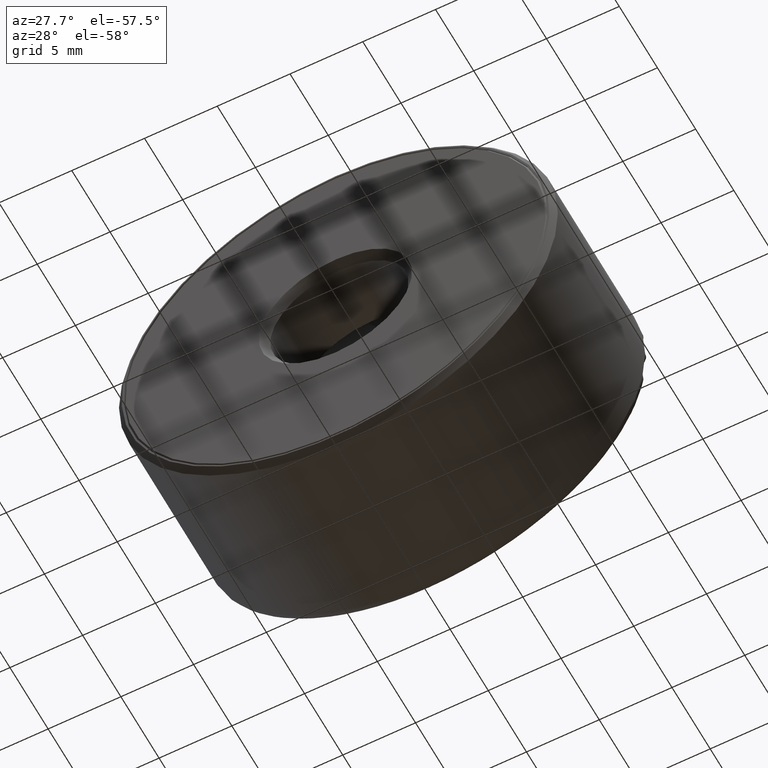
[diagram: clean part render]
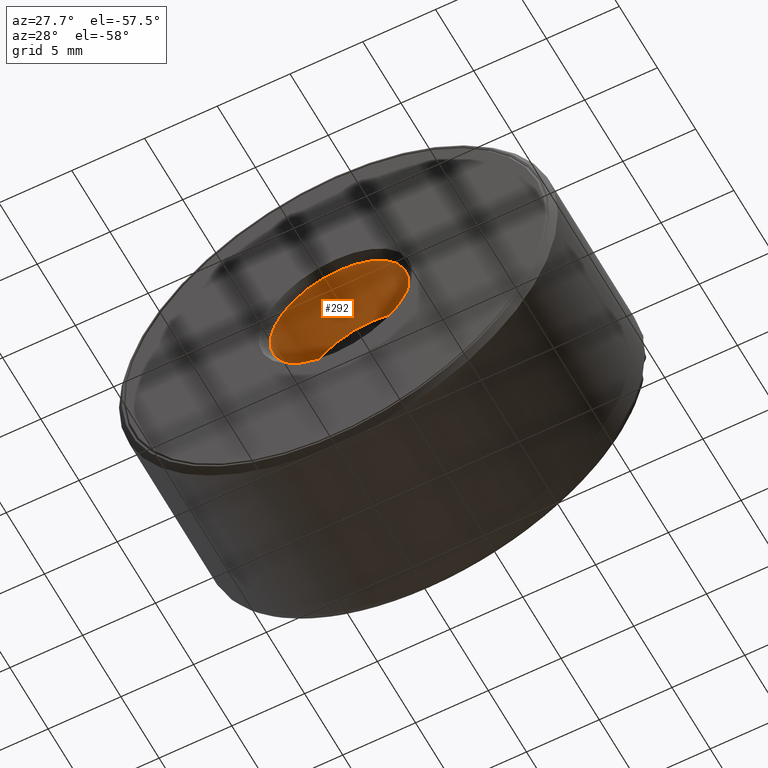
[diagram: same view with one face highlighted and labeled with its STEP entity id]
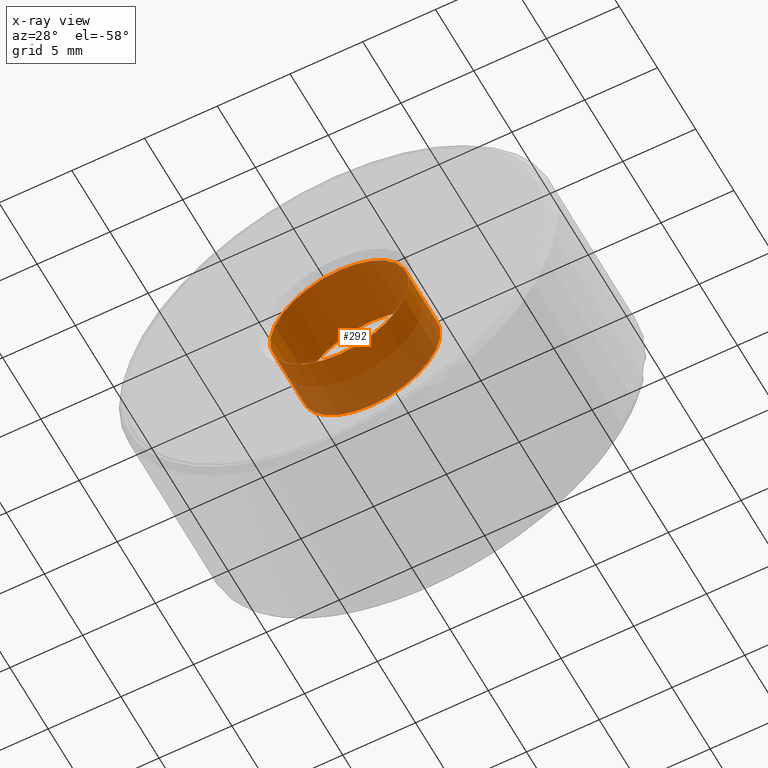
[diagram: x-ray of the same camera — body ghosted, the highlighted face saturated]
A machine part, auxiliary view. The second image highlights one B-rep face of the part: STEP entity #292.
The next image is the same camera in x-ray: the body ghosted, the highlighted face saturated — about 30% of this face is hidden behind the body in this view.
In plain terms, the highlighted cylindrical surface (bore or boss wall) has radius 4.7625 mm, axis along (-0, 1, -0).
Its self-contained STEP definition (entity closure, byte-faithful):
#9 = AXIS2_PLACEMENT_3D ( 'NONE', #597, #99, #372 ) ;
#90 = ORIENTED_EDGE ( 'NONE', *, *, #370, .T. ) ;
#99 = DIRECTION ( 'NONE',  ( -0.0000000000000000000, 1.000000000000000000, -0.0000000000000000000 ) ) ;
#119 = VERTEX_POINT ( 'NONE', #564 ) ;
#152 = CARTESIAN_POINT ( 'NONE',  ( 0.0000000000000000000, 0.1843750000000000700, 0.1875000000000000800 ) ) ;
#218 = CIRCLE ( 'NONE', #9, 0.1875000000000000300 ) ;
#240 = FACE_OUTER_BOUND ( 'NONE', #569, .T. ) ;
#269 = DIRECTION ( 'NONE',  ( 0.0000000000000000000, 0.0000000000000000000, 1.000000000000000000 ) ) ;
#277 = DIRECTION ( 'NONE',  ( 0.0000000000000000000, 0.0000000000000000000, 1.000000000000000000 ) ) ;
#283 = EDGE_LOOP ( 'NONE', ( #349 ) ) ;
#292 = ADVANCED_FACE ( 'NONE', ( #503, #240 ), #462, .F. ) ;
#349 = ORIENTED_EDGE ( 'NONE', *, *, #448, .F. ) ;
#370 = EDGE_CURVE ( 'NONE', #604, #604, #566, .T. ) ;
#372 = DIRECTION ( 'NONE',  ( 0.0000000000000000000, 0.0000000000000000000, 1.000000000000000000 ) ) ;
#395 = AXIS2_PLACEMENT_3D ( 'NONE', #412, #497, #269 ) ;
#412 = CARTESIAN_POINT ( 'NONE',  ( 0.0000000000000000000, 0.0000000000000000000, 0.0000000000000000000 ) ) ;
#448 = EDGE_CURVE ( 'NONE', #119, #119, #218, .T. ) ;
#462 = CYLINDRICAL_SURFACE ( 'NONE', #395, 0.1875000000000000600 ) ;
#497 = DIRECTION ( 'NONE',  ( -0.0000000000000000000, 1.000000000000000000, -0.0000000000000000000 ) ) ;
#502 = DIRECTION ( 'NONE',  ( -0.0000000000000000000, 1.000000000000000000, -0.0000000000000000000 ) ) ;
#503 = FACE_OUTER_BOUND ( 'NONE', #283, .T. ) ;
#506 = CARTESIAN_POINT ( 'NONE',  ( 0.0000000000000000000, 0.1843750000000000700, 0.0000000000000000000 ) ) ;
#564 = CARTESIAN_POINT ( 'NONE',  ( 0.0000000000000000000, 0.02000000000000002500, 0.1875000000000000300 ) ) ;
#566 = CIRCLE ( 'NONE', #578, 0.1875000000000000800 ) ;
#569 = EDGE_LOOP ( 'NONE', ( #90 ) ) ;
#578 = AXIS2_PLACEMENT_3D ( 'NONE', #506, #502, #277 ) ;
#597 = CARTESIAN_POINT ( 'NONE',  ( 0.0000000000000000000, 0.02000000000000002500, 0.0000000000000000000 ) ) ;
#604 = VERTEX_POINT ( 'NONE', #152 ) ;